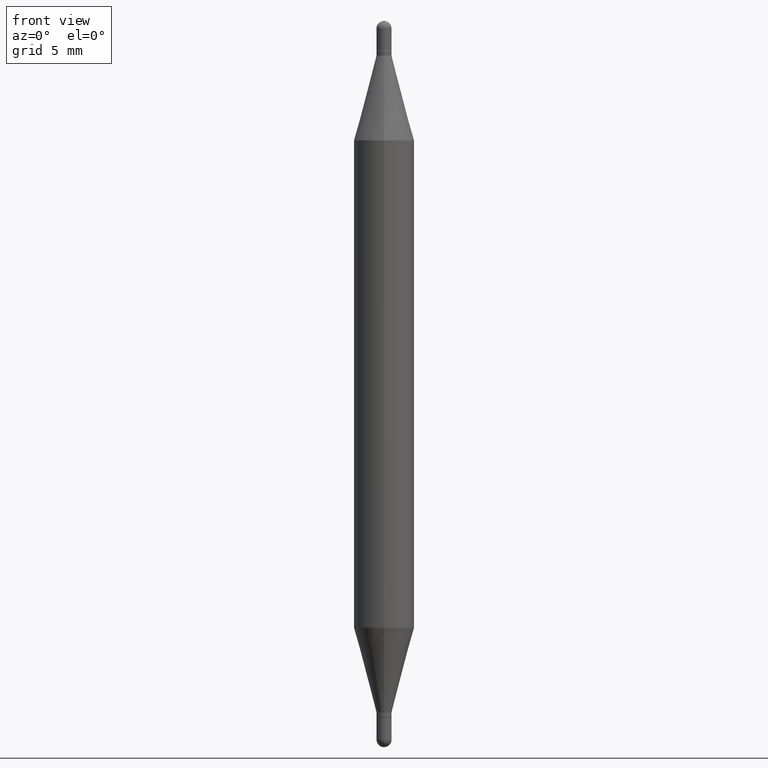
[diagram: clean part render]
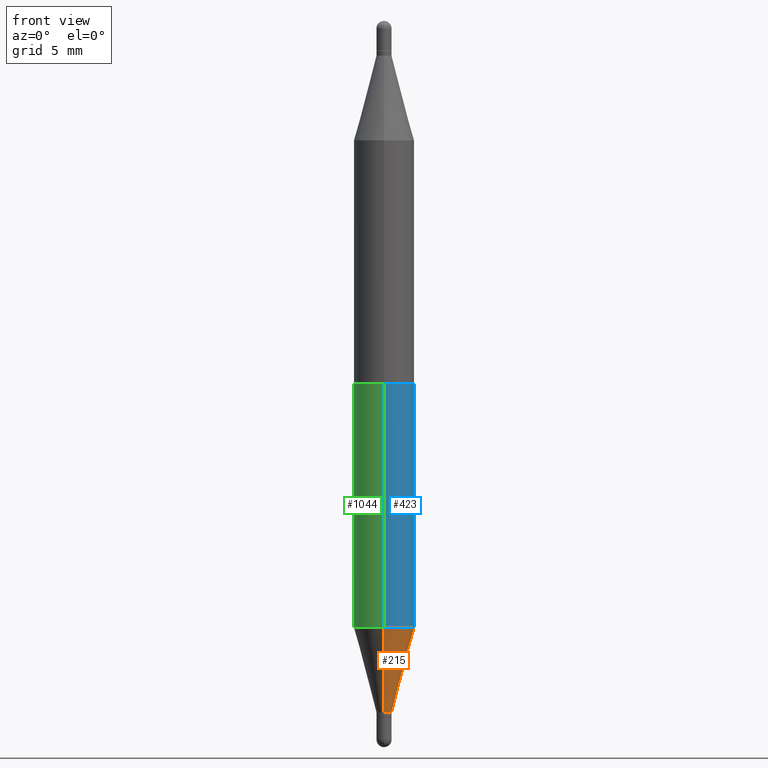
[diagram: same view with three faces highlighted in distinct colors, each labeled with its STEP entity id]
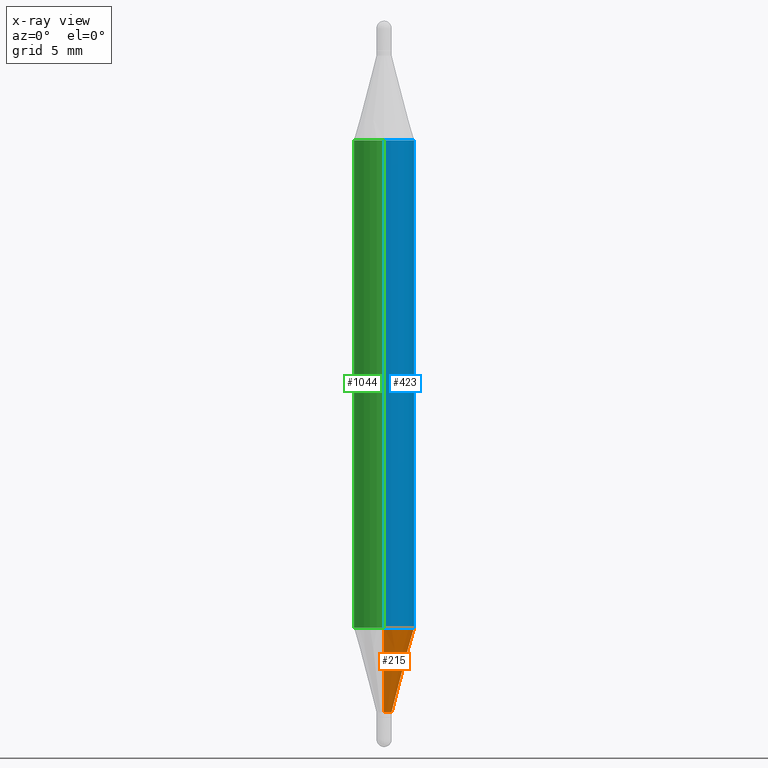
[diagram: x-ray of the same camera — body ghosted, the three highlighted faces saturated]
A machine part, front view with three faces highlighted in distinct colors.
The next image is the same camera in x-ray (body ghosted, the three faces saturated) — at least one of them is partly hidden behind the body in this view.
Their STEP definitions:

[orange] entity #215 — the highlighted conical surface has half-angle 15 deg.
#27 = FACE_OUTER_BOUND ( 'NONE', #514, .T. ) ;
#48 = LINE ( 'NONE', #488, #1086 ) ;
#50 = DIRECTION ( 'NONE',  ( -6.982962677686265133E-15, -1.000000000000000000, 0.000000000000000000 ) ) ;
#63 = CIRCLE ( 'NONE', #476, 0.06249999999999999306 ) ;
#78 = EDGE_CURVE ( 'NONE', #727, #841, #1031, .T. ) ;
#106 = DIRECTION ( 'NONE',  ( -2.448365453507603651E-29, 3.487333175010445731E-15, 1.000000000000000000 ) ) ;
#110 = DIRECTION ( 'NONE',  ( -6.982962677686265133E-15, -1.000000000000000000, 0.000000000000000000 ) ) ;
#186 = VECTOR ( 'NONE', #607, 39.37007874015748854 ) ;
#191 = DIRECTION ( 'NONE',  ( -6.982962677686265922E-15, -1.000000000000000000, 4.370956789862821938E-15 ) ) ;
#215 = ADVANCED_FACE ( 'NONE', ( #27 ), #287, .T. ) ;
#287 = CONICAL_SURFACE ( 'NONE', #916, 0.01559999999999982234, 0.2617993877991499629 ) ;
#301 = CIRCLE ( 'NONE', #656, 0.01559999999999982234 ) ;
#372 = EDGE_CURVE ( 'NONE', #755, #1101, #48, .T. ) ;
#382 = CARTESIAN_POINT ( 'NONE',  ( 3.496265867608858858E-29, -4.979911773914918445E-15, -1.428000000000000380 ) ) ;
#402 = DIRECTION ( 'NONE',  ( -1.807323732225328167E-15, -0.2588190451025179084, 0.9659258262890690894 ) ) ;
#476 = AXIS2_PLACEMENT_3D ( 'NONE', #597, #781, #191 ) ;
#488 = CARTESIAN_POINT ( 'NONE',  ( -1.089342177718695287E-16, -0.01560000000000480100, -1.428000000000000380 ) ) ;
#514 = EDGE_LOOP ( 'NONE', ( #584, #667, #1056, #1117 ) ) ;
#584 = ORIENTED_EDGE ( 'NONE', *, *, #733, .T. ) ;
#597 = CARTESIAN_POINT ( 'NONE',  ( 3.067720669440277841E-29, -4.369512748547328200E-15, -1.252966817125019894 ) ) ;
#607 = DIRECTION ( 'NONE',  ( 1.839019923739597949E-15, 0.2588190451025246253, 0.9659258262890670910 ) ) ;
#656 = AXIS2_PLACEMENT_3D ( 'NONE', #974, #722, #50 ) ;
#667 = ORIENTED_EDGE ( 'NONE', *, *, #78, .T. ) ;
#698 = CARTESIAN_POINT ( 'NONE',  ( 1.108446667786093231E-16, 0.01559999999999484195, -1.428000000000000380 ) ) ;
#722 = DIRECTION ( 'NONE',  ( -2.448365453507603651E-29, 3.487333175010445731E-15, 1.000000000000000000 ) ) ;
#727 = VERTEX_POINT ( 'NONE', #1053 ) ;
#733 = EDGE_CURVE ( 'NONE', #755, #727, #301, .T. ) ;
#755 = VERTEX_POINT ( 'NONE', #913 ) ;
#781 = DIRECTION ( 'NONE',  ( -2.448365453507603651E-29, 3.487333175010445731E-15, 1.000000000000000000 ) ) ;
#841 = VERTEX_POINT ( 'NONE', #1087 ) ;
#913 = CARTESIAN_POINT ( 'NONE',  ( -1.089342177718695287E-16, -0.01560000000000480100, -1.428000000000000380 ) ) ;
#916 = AXIS2_PLACEMENT_3D ( 'NONE', #382, #106, #110 ) ;
#974 = CARTESIAN_POINT ( 'NONE',  ( 3.496265867608858858E-29, -4.979911773914918445E-15, -1.428000000000000380 ) ) ;
#1009 = EDGE_CURVE ( 'NONE', #1101, #841, #63, .T. ) ;
#1027 = CARTESIAN_POINT ( 'NONE',  ( -4.364351673553608545E-16, -0.06250000000000435763, -1.252966817125019672 ) ) ;
#1031 = LINE ( 'NONE', #698, #186 ) ;
#1053 = CARTESIAN_POINT ( 'NONE',  ( 1.108446667786099887E-16, 0.01559999999999484195, -1.428000000000000380 ) ) ;
#1056 = ORIENTED_EDGE ( 'NONE', *, *, #1009, .F. ) ;
#1086 = VECTOR ( 'NONE', #402, 39.37007874015748143 ) ;
#1087 = CARTESIAN_POINT ( 'NONE',  ( 4.287811248607390144E-16, 0.06249999999999562156, -1.252966817125020116 ) ) ;
#1101 = VERTEX_POINT ( 'NONE', #1027 ) ;
#1117 = ORIENTED_EDGE ( 'NONE', *, *, #372, .F. ) ;

[blue] entity #423 — the highlighted cylindrical surface (edge-blend (fillet) strip) has radius 1.5875 mm, axis along (-0, -0, -1).
#9 = AXIS2_PLACEMENT_3D ( 'NONE', #715, #1055, #972 ) ;
#63 = CIRCLE ( 'NONE', #476, 0.06249999999999999306 ) ;
#114 = DIRECTION ( 'NONE',  ( -2.448365453507603651E-29, -3.483762630810528106E-15, -1.000000000000000000 ) ) ;
#191 = DIRECTION ( 'NONE',  ( -6.982962677686265922E-15, -1.000000000000000000, 4.370956789862821938E-15 ) ) ;
#222 = FACE_OUTER_BOUND ( 'NONE', #245, .T. ) ;
#241 = EDGE_CURVE ( 'NONE', #991, #691, #1037, .T. ) ;
#245 = EDGE_LOOP ( 'NONE', ( #996, #911, #486, #1094 ) ) ;
#253 = EDGE_CURVE ( 'NONE', #691, #841, #391, .T. ) ;
#265 = CARTESIAN_POINT ( 'NONE',  ( -4.364351673553916201E-16, -0.06250000000000521805, -1.500000000000000222 ) ) ;
#304 = DIRECTION ( 'NONE',  ( -2.448365453507603651E-29, -3.483762630810528106E-15, -1.000000000000000000 ) ) ;
#391 = LINE ( 'NONE', #725, #1069 ) ;
#423 = ADVANCED_FACE ( 'NONE', ( #222 ), #713, .T. ) ;
#432 = VECTOR ( 'NONE', #602, 39.37007874015748143 ) ;
#476 = AXIS2_PLACEMENT_3D ( 'NONE', #597, #781, #191 ) ;
#486 = ORIENTED_EDGE ( 'NONE', *, *, #1015, .T. ) ;
#532 = CARTESIAN_POINT ( 'NONE',  ( 4.287811248607512910E-16, 0.06249999999999911876, -0.2470331828749807723 ) ) ;
#597 = CARTESIAN_POINT ( 'NONE',  ( 3.067720669440277841E-29, -4.369512748547328200E-15, -1.252966817125019894 ) ) ;
#602 = DIRECTION ( 'NONE',  ( -2.448365453507603651E-29, -3.483762630810528106E-15, -1.000000000000000000 ) ) ;
#611 = LINE ( 'NONE', #265, #432 ) ;
#691 = VERTEX_POINT ( 'NONE', #532 ) ;
#713 = CYLINDRICAL_SURFACE ( 'NONE', #842, 0.06250000000000000000 ) ;
#715 = CARTESIAN_POINT ( 'NONE',  ( 3.067720669440277841E-29, -8.632828792199796341E-16, -0.2470331828749805503 ) ) ;
#725 = CARTESIAN_POINT ( 'NONE',  ( 4.287811248607206733E-16, 0.06249999999999477501, -1.500000000000000666 ) ) ;
#781 = DIRECTION ( 'NONE',  ( -2.448365453507603651E-29, 3.487333175010445731E-15, 1.000000000000000000 ) ) ;
#800 = DIRECTION ( 'NONE',  ( -6.982962677686265922E-15, -1.000000000000000000, 4.370956789862821150E-15 ) ) ;
#841 = VERTEX_POINT ( 'NONE', #1087 ) ;
#842 = AXIS2_PLACEMENT_3D ( 'NONE', #1061, #114, #800 ) ;
#858 = CARTESIAN_POINT ( 'NONE',  ( -4.364351673553608545E-16, -0.06250000000000086042, -0.2470331828749803005 ) ) ;
#911 = ORIENTED_EDGE ( 'NONE', *, *, #241, .F. ) ;
#972 = DIRECTION ( 'NONE',  ( -6.982962677686265922E-15, -1.000000000000000000, 3.278217592397116257E-15 ) ) ;
#991 = VERTEX_POINT ( 'NONE', #858 ) ;
#996 = ORIENTED_EDGE ( 'NONE', *, *, #253, .F. ) ;
#1009 = EDGE_CURVE ( 'NONE', #1101, #841, #63, .T. ) ;
#1015 = EDGE_CURVE ( 'NONE', #991, #1101, #611, .T. ) ;
#1027 = CARTESIAN_POINT ( 'NONE',  ( -4.364351673553608545E-16, -0.06250000000000435763, -1.252966817125019672 ) ) ;
#1037 = CIRCLE ( 'NONE', #9, 0.06249999999999999306 ) ;
#1055 = DIRECTION ( 'NONE',  ( 2.448365453507603651E-29, 3.483762630810528106E-15, 1.000000000000000000 ) ) ;
#1061 = CARTESIAN_POINT ( 'NONE',  ( 0.000000000000000000, -5.228321854365732350E-15, -1.500000000000000444 ) ) ;
#1069 = VECTOR ( 'NONE', #304, 39.37007874015748143 ) ;
#1087 = CARTESIAN_POINT ( 'NONE',  ( 4.287811248607390144E-16, 0.06249999999999562156, -1.252966817125020116 ) ) ;
#1094 = ORIENTED_EDGE ( 'NONE', *, *, #1009, .T. ) ;
#1101 = VERTEX_POINT ( 'NONE', #1027 ) ;

[green] entity #1044 — the highlighted cylindrical surface (edge-blend (fillet) strip) has radius 1.5875 mm, axis along (-0, -0, -1).
#6 = EDGE_LOOP ( 'NONE', ( #439, #1034, #49, #547 ) ) ;
#49 = ORIENTED_EDGE ( 'NONE', *, *, #511, .T. ) ;
#99 = FACE_OUTER_BOUND ( 'NONE', #6, .T. ) ;
#172 = EDGE_CURVE ( 'NONE', #691, #991, #570, .T. ) ;
#185 = AXIS2_PLACEMENT_3D ( 'NONE', #1018, #350, #1022 ) ;
#201 = CARTESIAN_POINT ( 'NONE',  ( 3.067720669440277841E-29, -8.632828792199796341E-16, -0.2470331828749805503 ) ) ;
#253 = EDGE_CURVE ( 'NONE', #691, #841, #391, .T. ) ;
#255 = CYLINDRICAL_SURFACE ( 'NONE', #185, 0.06250000000000000000 ) ;
#265 = CARTESIAN_POINT ( 'NONE',  ( -4.364351673553916201E-16, -0.06250000000000521805, -1.500000000000000222 ) ) ;
#290 = CARTESIAN_POINT ( 'NONE',  ( 3.067720669440277841E-29, -4.369512748547328200E-15, -1.252966817125019894 ) ) ;
#304 = DIRECTION ( 'NONE',  ( -2.448365453507603651E-29, -3.483762630810528106E-15, -1.000000000000000000 ) ) ;
#325 = CIRCLE ( 'NONE', #395, 0.06249999999999999306 ) ;
#350 = DIRECTION ( 'NONE',  ( -2.448365453507603651E-29, -3.483762630810528106E-15, -1.000000000000000000 ) ) ;
#391 = LINE ( 'NONE', #725, #1069 ) ;
#395 = AXIS2_PLACEMENT_3D ( 'NONE', #290, #554, #635 ) ;
#432 = VECTOR ( 'NONE', #602, 39.37007874015748143 ) ;
#439 = ORIENTED_EDGE ( 'NONE', *, *, #172, .F. ) ;
#511 = EDGE_CURVE ( 'NONE', #841, #1101, #325, .T. ) ;
#532 = CARTESIAN_POINT ( 'NONE',  ( 4.287811248607512910E-16, 0.06249999999999911876, -0.2470331828749807723 ) ) ;
#547 = ORIENTED_EDGE ( 'NONE', *, *, #1015, .F. ) ;
#554 = DIRECTION ( 'NONE',  ( -2.448365453507603651E-29, 3.487333175010445731E-15, 1.000000000000000000 ) ) ;
#570 = CIRCLE ( 'NONE', #1090, 0.06249999999999999306 ) ;
#602 = DIRECTION ( 'NONE',  ( -2.448365453507603651E-29, -3.483762630810528106E-15, -1.000000000000000000 ) ) ;
#611 = LINE ( 'NONE', #265, #432 ) ;
#635 = DIRECTION ( 'NONE',  ( -6.982962677686265922E-15, -1.000000000000000000, 4.370956789862821938E-15 ) ) ;
#691 = VERTEX_POINT ( 'NONE', #532 ) ;
#703 = DIRECTION ( 'NONE',  ( 2.448365453507603651E-29, 3.483762630810528106E-15, 1.000000000000000000 ) ) ;
#725 = CARTESIAN_POINT ( 'NONE',  ( 4.287811248607206733E-16, 0.06249999999999477501, -1.500000000000000666 ) ) ;
#799 = DIRECTION ( 'NONE',  ( -6.982962677686265922E-15, -1.000000000000000000, 3.278217592397116257E-15 ) ) ;
#841 = VERTEX_POINT ( 'NONE', #1087 ) ;
#858 = CARTESIAN_POINT ( 'NONE',  ( -4.364351673553608545E-16, -0.06250000000000086042, -0.2470331828749803005 ) ) ;
#991 = VERTEX_POINT ( 'NONE', #858 ) ;
#1015 = EDGE_CURVE ( 'NONE', #991, #1101, #611, .T. ) ;
#1018 = CARTESIAN_POINT ( 'NONE',  ( 0.000000000000000000, -5.228321854365732350E-15, -1.500000000000000444 ) ) ;
#1022 = DIRECTION ( 'NONE',  ( -6.982962677686265922E-15, -1.000000000000000000, 4.370956789862821150E-15 ) ) ;
#1027 = CARTESIAN_POINT ( 'NONE',  ( -4.364351673553608545E-16, -0.06250000000000435763, -1.252966817125019672 ) ) ;
#1034 = ORIENTED_EDGE ( 'NONE', *, *, #253, .T. ) ;
#1044 = ADVANCED_FACE ( 'NONE', ( #99 ), #255, .T. ) ;
#1069 = VECTOR ( 'NONE', #304, 39.37007874015748143 ) ;
#1087 = CARTESIAN_POINT ( 'NONE',  ( 4.287811248607390144E-16, 0.06249999999999562156, -1.252966817125020116 ) ) ;
#1090 = AXIS2_PLACEMENT_3D ( 'NONE', #201, #703, #799 ) ;
#1101 = VERTEX_POINT ( 'NONE', #1027 ) ;